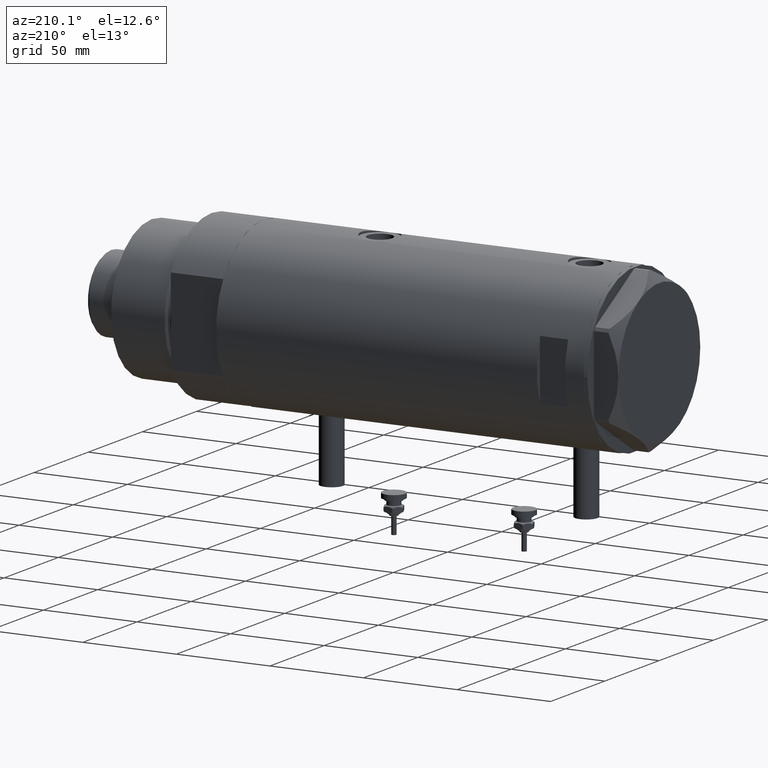
[diagram: clean part render]
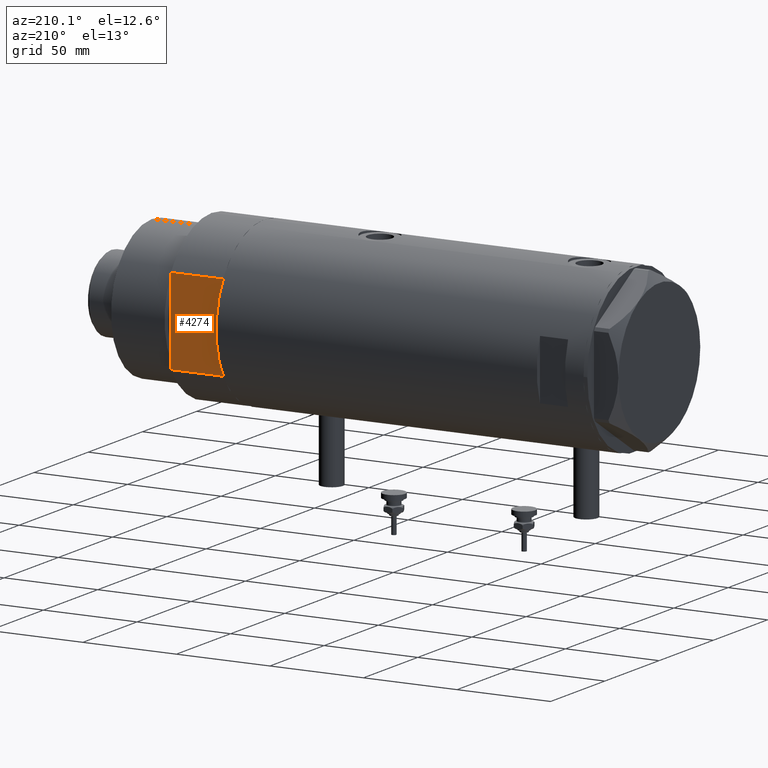
[diagram: same view with one face highlighted and labeled with its STEP entity id]
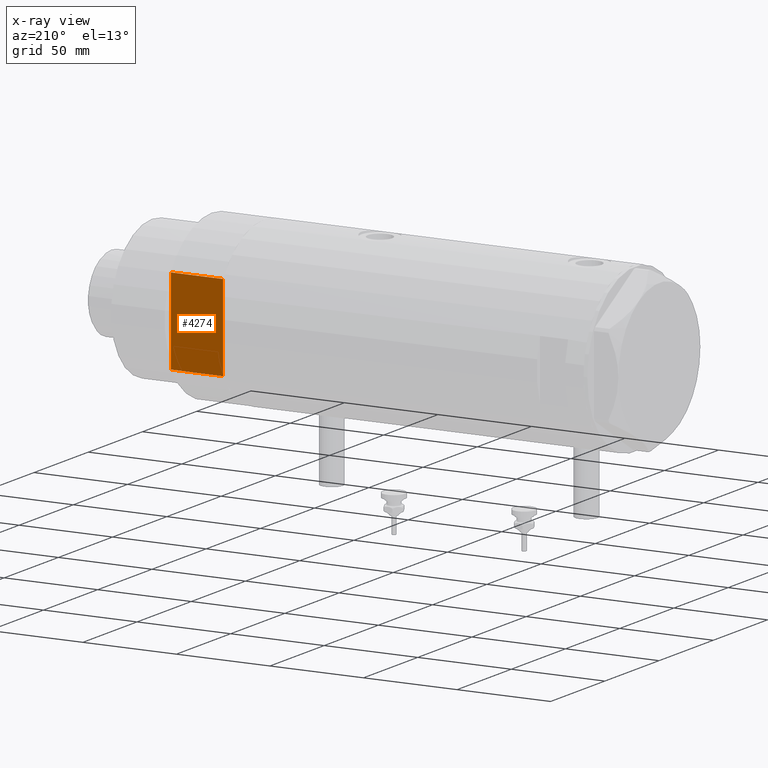
[diagram: x-ray of the same camera — body ghosted, the highlighted face saturated]
A machine part, auxiliary view. The second image highlights one B-rep face of the part: STEP entity #4274.
The next image is the same camera in x-ray: the body ghosted, the highlighted face saturated — about 0% of this face is hidden behind the body in this view.
In plain terms, the highlighted planar face has unit normal (0, -1, -0).
Its self-contained STEP definition (entity closure, byte-faithful):
#39 = VERTEX_POINT ( 'NONE', #1639 ) ;
#66 = ORIENTED_EDGE ( 'NONE', *, *, #4809, .T. ) ;
#93 = LINE ( 'NONE', #4266, #2595 ) ;
#186 = CARTESIAN_POINT ( 'NONE',  ( 0.000000000000000000, 37.50000000000000000, 27.89999999999999858 ) ) ;
#365 = LINE ( 'NONE', #4097, #4656 ) ;
#765 = VECTOR ( 'NONE', #3637, 1000.000000000000000 ) ;
#831 = CARTESIAN_POINT ( 'NONE',  ( -23.01629857296780557, 37.50000000000000000, 0.000000000000000000 ) ) ;
#1141 = ORIENTED_EDGE ( 'NONE', *, *, #4986, .T. ) ;
#1289 = CARTESIAN_POINT ( 'NONE',  ( -23.01629857296780557, 37.50000000000000000, 0.000000000000000000 ) ) ;
#1474 = CARTESIAN_POINT ( 'NONE',  ( -23.01629857296780557, 37.50000000000000000, 0.000000000000000000 ) ) ;
#1542 = VERTEX_POINT ( 'NONE', #2983 ) ;
#1612 = VECTOR ( 'NONE', #3119, 1000.000000000000000 ) ;
#1639 = CARTESIAN_POINT ( 'NONE',  ( -13.91941090707505957, 37.50000000000000000, 0.000000000000000000 ) ) ;
#1666 = EDGE_CURVE ( 'NONE', #1542, #2884, #93, .T. ) ;
#1706 = ORIENTED_EDGE ( 'NONE', *, *, #2455, .F. ) ;
#1754 = CARTESIAN_POINT ( 'NONE',  ( 23.01629857296780557, 37.50000000000000000, 27.89999999999999858 ) ) ;
#1812 = CARTESIAN_POINT ( 'NONE',  ( -23.01629857296780557, 37.50000000000000000, 0.000000000000000000 ) ) ;
#1952 = DIRECTION ( 'NONE',  ( -0.000000000000000000, -0.000000000000000000, 1.000000000000000000 ) ) ;
#2237 = DIRECTION ( 'NONE',  ( 1.000000000000000000, 0.000000000000000000, 0.000000000000000000 ) ) ;
#2337 = VECTOR ( 'NONE', #4300, 1000.000000000000000 ) ;
#2455 = EDGE_CURVE ( 'NONE', #39, #3190, #365, .T. ) ;
#2595 = VECTOR ( 'NONE', #1952, 1000.000000000000000 ) ;
#2868 = ORIENTED_EDGE ( 'NONE', *, *, #1666, .F. ) ;
#2884 = VERTEX_POINT ( 'NONE', #1754 ) ;
#2894 = VERTEX_POINT ( 'NONE', #831 ) ;
#2983 = CARTESIAN_POINT ( 'NONE',  ( 23.01629857296780557, 37.50000000000000000, 0.000000000000000000 ) ) ;
#3119 = DIRECTION ( 'NONE',  ( 1.000000000000000000, 0.000000000000000000, 0.000000000000000000 ) ) ;
#3174 = LINE ( 'NONE', #3658, #5527 ) ;
#3190 = VERTEX_POINT ( 'NONE', #5513 ) ;
#3194 = DIRECTION ( 'NONE',  ( 0.000000000000000000, -0.000000000000000000, -1.000000000000000000 ) ) ;
#3221 = VERTEX_POINT ( 'NONE', #186 ) ;
#3342 = LINE ( 'NONE', #1474, #2337 ) ;
#3348 = EDGE_CURVE ( 'NONE', #3221, #2884, #4150, .T. ) ;
#3364 = DIRECTION ( 'NONE',  ( 1.000000000000000000, 0.000000000000000000, 0.000000000000000000 ) ) ;
#3637 = DIRECTION ( 'NONE',  ( 1.000000000000000000, 0.000000000000000000, 0.000000000000000000 ) ) ;
#3658 = CARTESIAN_POINT ( 'NONE',  ( -23.01629857296780557, 37.50000000000000000, 27.89999999999999858 ) ) ;
#3762 = CARTESIAN_POINT ( 'NONE',  ( -23.01629857296780557, 37.50000000000000000, 0.000000000000000000 ) ) ;
#3876 = AXIS2_PLACEMENT_3D ( 'NONE', #1812, #5938, #3194 ) ;
#4012 = VERTEX_POINT ( 'NONE', #5336 ) ;
#4069 = PLANE ( 'NONE',  #3876 ) ;
#4097 = CARTESIAN_POINT ( 'NONE',  ( -23.01629857296780557, 37.50000000000000000, 0.000000000000000000 ) ) ;
#4102 = FACE_OUTER_BOUND ( 'NONE', #4983, .T. ) ;
#4145 = DIRECTION ( 'NONE',  ( 1.000000000000000000, 0.000000000000000000, 0.000000000000000000 ) ) ;
#4150 = LINE ( 'NONE', #4578, #1612 ) ;
#4177 = VECTOR ( 'NONE', #3364, 1000.000000000000000 ) ;
#4266 = CARTESIAN_POINT ( 'NONE',  ( 23.01629857296780557, 37.50000000000000000, 0.000000000000000000 ) ) ;
#4274 = ADVANCED_FACE ( 'NONE', ( #4102 ), #4069, .F. ) ;
#4300 = DIRECTION ( 'NONE',  ( -0.000000000000000000, -0.000000000000000000, 1.000000000000000000 ) ) ;
#4578 = CARTESIAN_POINT ( 'NONE',  ( -23.01629857296780557, 37.50000000000000000, 27.89999999999999858 ) ) ;
#4656 = VECTOR ( 'NONE', #2237, 1000.000000000000000 ) ;
#4774 = EDGE_CURVE ( 'NONE', #3190, #1542, #5216, .T. ) ;
#4809 = EDGE_CURVE ( 'NONE', #2894, #4012, #3342, .T. ) ;
#4826 = ORIENTED_EDGE ( 'NONE', *, *, #5738, .F. ) ;
#4856 = ORIENTED_EDGE ( 'NONE', *, *, #4774, .F. ) ;
#4983 = EDGE_LOOP ( 'NONE', ( #1141, #5905, #2868, #4856, #1706, #4826, #66 ) ) ;
#4986 = EDGE_CURVE ( 'NONE', #4012, #3221, #3174, .T. ) ;
#5216 = LINE ( 'NONE', #3762, #4177 ) ;
#5336 = CARTESIAN_POINT ( 'NONE',  ( -23.01629857296780557, 37.50000000000000000, 27.89999999999999858 ) ) ;
#5453 = LINE ( 'NONE', #1289, #765 ) ;
#5513 = CARTESIAN_POINT ( 'NONE',  ( 13.91941090707505957, 37.50000000000000000, 0.000000000000000000 ) ) ;
#5527 = VECTOR ( 'NONE', #4145, 1000.000000000000000 ) ;
#5738 = EDGE_CURVE ( 'NONE', #2894, #39, #5453, .T. ) ;
#5905 = ORIENTED_EDGE ( 'NONE', *, *, #3348, .T. ) ;
#5938 = DIRECTION ( 'NONE',  ( 0.000000000000000000, -1.000000000000000000, 0.000000000000000000 ) ) ;